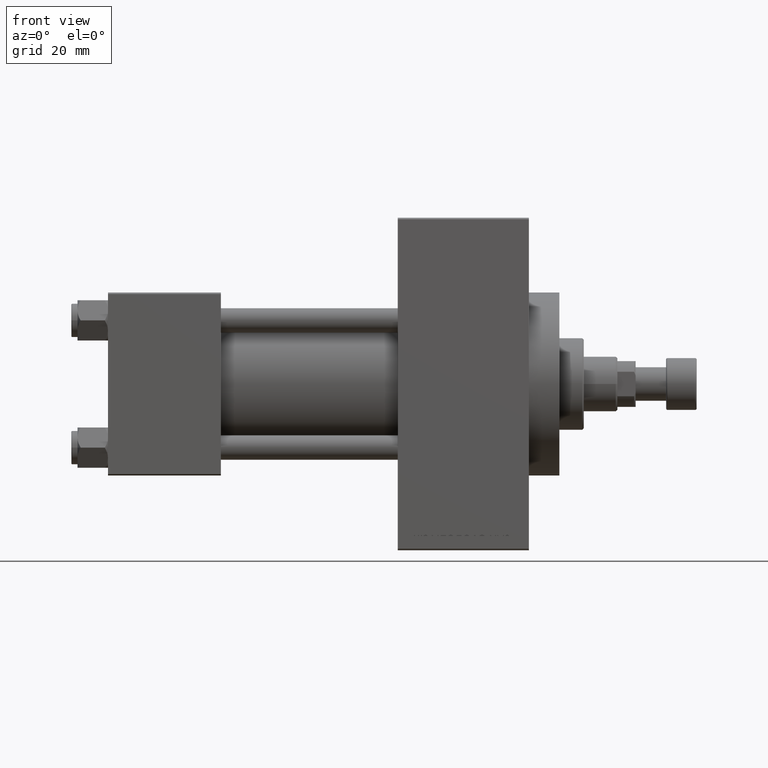
[diagram: clean part render]
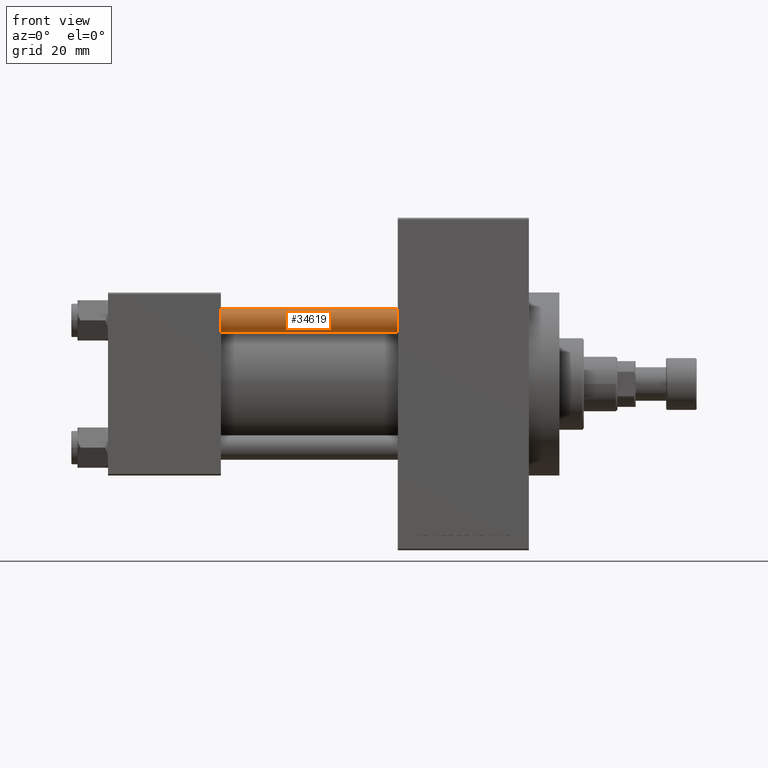
[diagram: same view with one face highlighted and labeled with its STEP entity id]
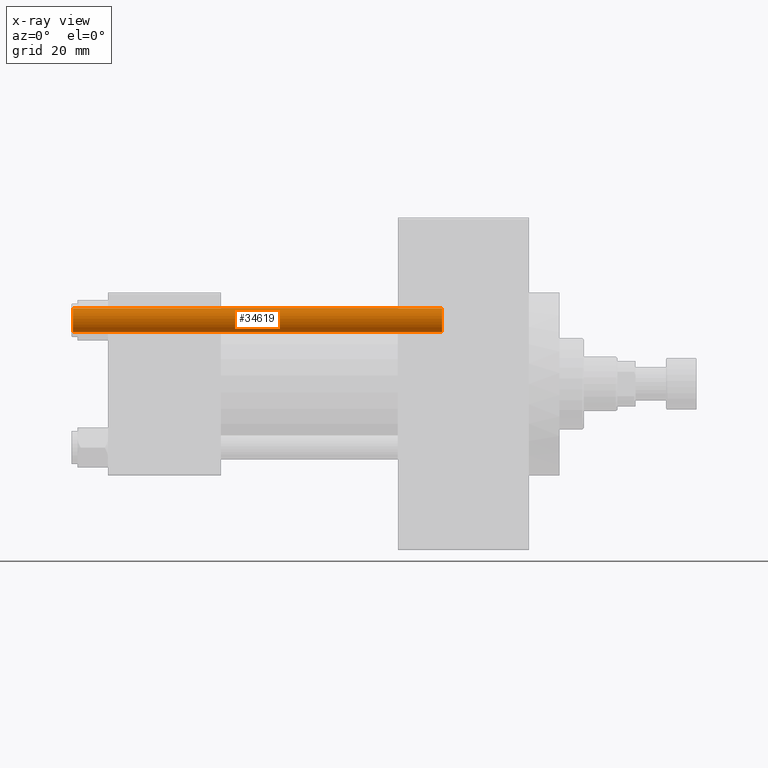
[diagram: x-ray of the same camera — body ghosted, the highlighted face saturated]
A machine part, front view. The second image highlights one B-rep face of the part: STEP entity #34619.
The next image is the same camera in x-ray: the body ghosted, the highlighted face saturated — about 0% of this face is hidden behind the body in this view.
In plain terms, the highlighted cylindrical surface (edge-blend (fillet) strip) has radius 4 mm, axis along (1, 0, 0).
Its self-contained STEP definition (entity closure, byte-faithful):
#1258 = CARTESIAN_POINT ( 'NONE',  ( 4.000000000000000000, 4.898587196589411843E-16, 122.0000000000000000 ) ) ;
#1484 = LINE ( 'NONE', #1258, #18947 ) ;
#3164 = ORIENTED_EDGE ( 'NONE', *, *, #9100, .T. ) ;
#5707 = DIRECTION ( 'NONE',  ( -0.000000000000000000, -0.000000000000000000, 1.000000000000000000 ) ) ;
#6847 = CARTESIAN_POINT ( 'NONE',  ( -4.000000000000000000, 0.000000000000000000, 122.0000000000000000 ) ) ;
#7933 = AXIS2_PLACEMENT_3D ( 'NONE', #42003, #5707, #38379 ) ;
#8348 = EDGE_CURVE ( 'NONE', #18484, #18080, #25483, .T. ) ;
#9100 = EDGE_CURVE ( 'NONE', #23248, #18080, #38825, .T. ) ;
#14437 = DIRECTION ( 'NONE',  ( 1.000000000000000000, 0.000000000000000000, 0.000000000000000000 ) ) ;
#16521 = CARTESIAN_POINT ( 'NONE',  ( 0.000000000000000000, 0.000000000000000000, 122.0000000000000000 ) ) ;
#17091 = CARTESIAN_POINT ( 'NONE',  ( -4.000000000000000000, 0.000000000000000000, 121.5000000000000426 ) ) ;
#18080 = VERTEX_POINT ( 'NONE', #27108 ) ;
#18484 = VERTEX_POINT ( 'NONE', #17091 ) ;
#18947 = VECTOR ( 'NONE', #45047, 1000.000000000000000 ) ;
#19963 = CIRCLE ( 'NONE', #26170, 4.000000000000000000 ) ;
#20386 = ORIENTED_EDGE ( 'NONE', *, *, #8348, .F. ) ;
#20648 = DIRECTION ( 'NONE',  ( -0.000000000000000000, -0.000000000000000000, -1.000000000000000000 ) ) ;
#21707 = AXIS2_PLACEMENT_3D ( 'NONE', #16521, #20648, #27907 ) ;
#22616 = VECTOR ( 'NONE', #44082, 1000.000000000000000 ) ;
#23248 = VERTEX_POINT ( 'NONE', #24085 ) ;
#24085 = CARTESIAN_POINT ( 'NONE',  ( 4.000000000000000000, 4.898587196589411843E-16, 0.5000000000000559552 ) ) ;
#25483 = LINE ( 'NONE', #6847, #22616 ) ;
#26170 = AXIS2_PLACEMENT_3D ( 'NONE', #43210, #46836, #14437 ) ;
#26194 = EDGE_CURVE ( 'NONE', #18484, #38448, #19963, .T. ) ;
#26772 = ORIENTED_EDGE ( 'NONE', *, *, #26194, .T. ) ;
#27108 = CARTESIAN_POINT ( 'NONE',  ( -4.000000000000000000, 0.000000000000000000, 0.5000000000000559552 ) ) ;
#27257 = CARTESIAN_POINT ( 'NONE',  ( 4.000000000000000000, 4.898587196589411843E-16, 121.5000000000000426 ) ) ;
#27907 = DIRECTION ( 'NONE',  ( -1.000000000000000000, 0.000000000000000000, 0.000000000000000000 ) ) ;
#31045 = CYLINDRICAL_SURFACE ( 'NONE', #21707, 4.000000000000000000 ) ;
#34619 = ADVANCED_FACE ( 'NONE', ( #38546 ), #31045, .T. ) ;
#38379 = DIRECTION ( 'NONE',  ( 1.000000000000000000, 0.000000000000000000, 0.000000000000000000 ) ) ;
#38448 = VERTEX_POINT ( 'NONE', #27257 ) ;
#38546 = FACE_OUTER_BOUND ( 'NONE', #40560, .T. ) ;
#38825 = CIRCLE ( 'NONE', #7933, 4.000000000000000000 ) ;
#40560 = EDGE_LOOP ( 'NONE', ( #26772, #46616, #3164, #20386 ) ) ;
#42003 = CARTESIAN_POINT ( 'NONE',  ( 0.000000000000000000, 0.000000000000000000, 0.5000000000000559552 ) ) ;
#43210 = CARTESIAN_POINT ( 'NONE',  ( 0.000000000000000000, 0.000000000000000000, 121.5000000000000426 ) ) ;
#44082 = DIRECTION ( 'NONE',  ( -0.000000000000000000, -0.000000000000000000, -1.000000000000000000 ) ) ;
#45047 = DIRECTION ( 'NONE',  ( -0.000000000000000000, -0.000000000000000000, -1.000000000000000000 ) ) ;
#46616 = ORIENTED_EDGE ( 'NONE', *, *, #47820, .T. ) ;
#46836 = DIRECTION ( 'NONE',  ( 0.000000000000000000, 0.000000000000000000, -1.000000000000000000 ) ) ;
#47820 = EDGE_CURVE ( 'NONE', #38448, #23248, #1484, .T. ) ;